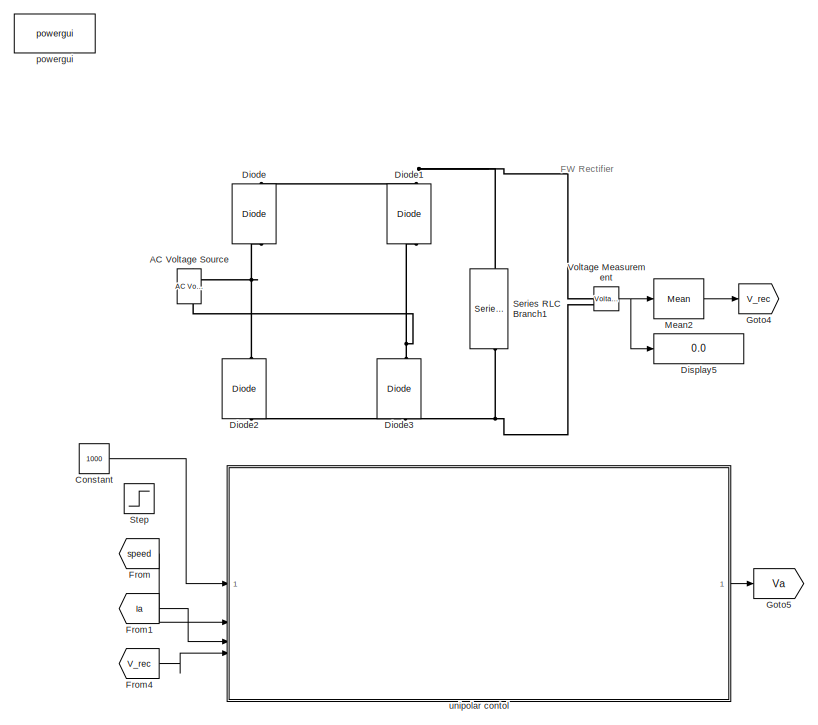
[diagram: root canvas - part 1/4, top left region]
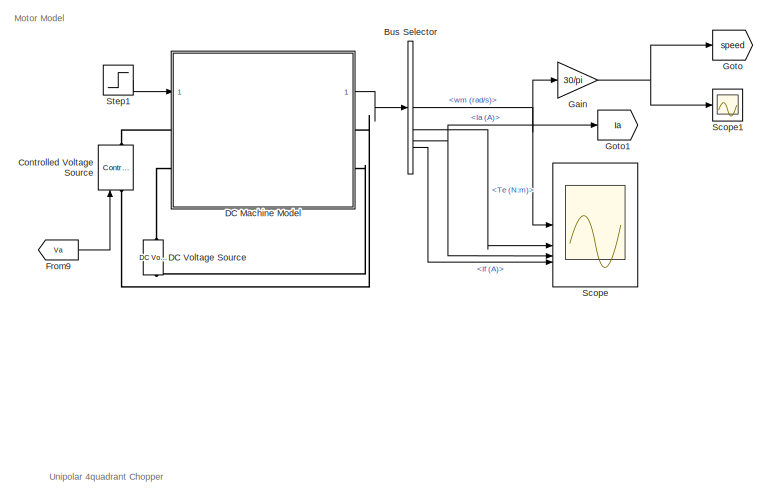
[diagram: root canvas - part 2/4, top right region]
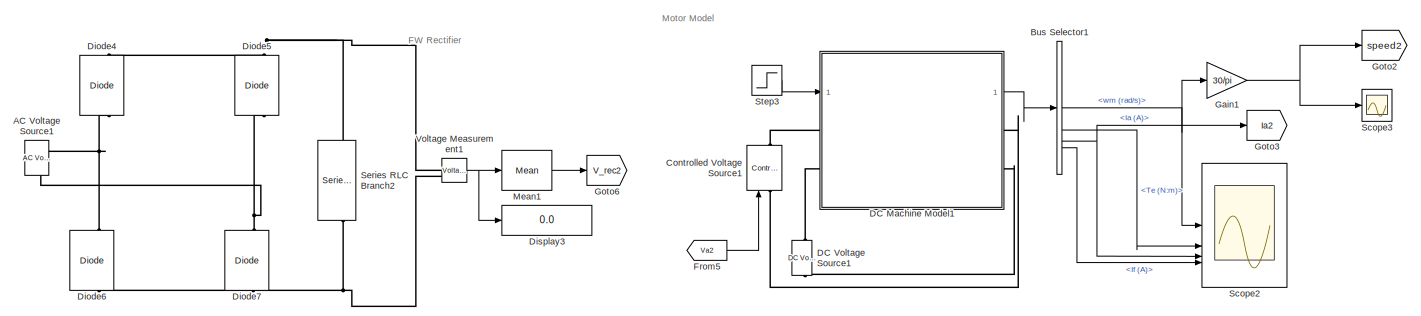
[diagram: root canvas - part 3/4, full width, bottom band]
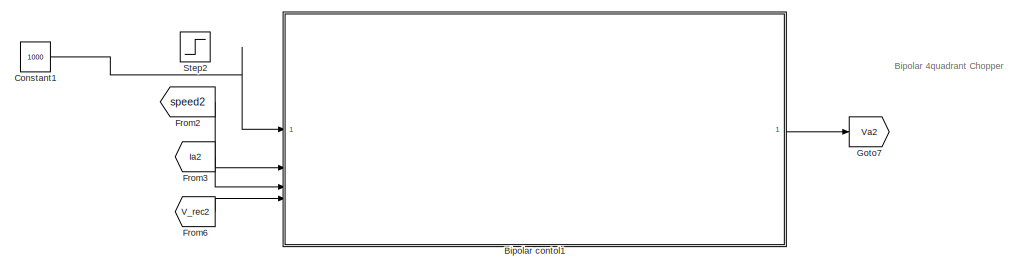
[diagram: root canvas - part 4/4, bottom left region]
MODEL slx_85523266f620
KIND model
CONFIG AbsTol = auto
CONFIG EnableMultiTasking = off
CONFIG FixedStep = auto
CONFIG InitFcn = Ra=0.6;\nLa=12e-3;\nRf=240;\nLf=120;\nj=1;\nK=1.309;
CONFIG MaxStep = 1e-3
CONFIG MinStep = auto
CONFIG RelTol = 1e-3
CONFIG SampleTimeConstraint = Unconstrained
CONFIG SolverName = ode23tb
CONFIG StartTime = 0.0
CONFIG StopTime = 10.0
BLOCK [Reference] AC Voltage Source  REF=spsACVoltageSourceLib/AC Voltage Source
  Commented = on
  LibrarySourceBlock = sps_lib/Sources/AC Voltage Source
  SourceBlock = spsACVoltageSourceLib/AC Voltage Source
  SourceType = AC Voltage Source
BLOCK [Reference] AC Voltage Source1  REF=spsACVoltageSourceLib/AC Voltage Source
  LibrarySourceBlock = sps_lib/Sources/AC Voltage Source
  SourceBlock = spsACVoltageSourceLib/AC Voltage Source
  SourceType = AC Voltage Source
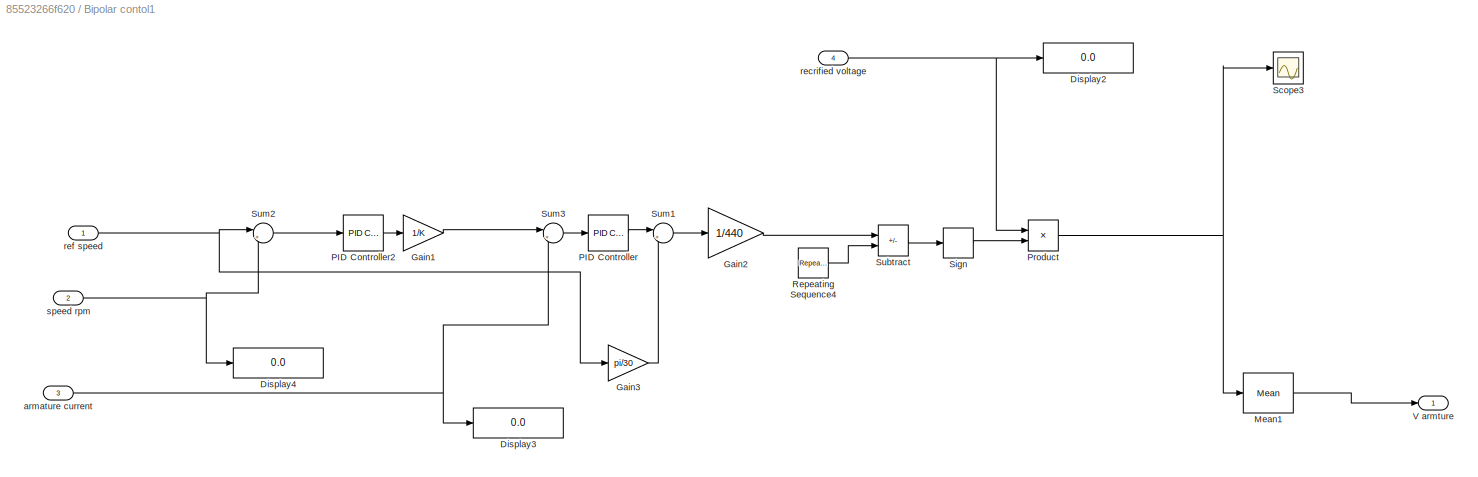
BLOCK [SubSystem] Bipolar contol1
BLOCK [Display] Bipolar contol1/Display2
  Decimation = 1
BLOCK [Display] Bipolar contol1/Display3
  Decimation = 1
BLOCK [Display] Bipolar contol1/Display4
  Decimation = 1
BLOCK [Gain] Bipolar contol1/Gain1
  Gain = 1/K
BLOCK [Gain] Bipolar contol1/Gain2
  Gain = 1/440
BLOCK [Gain] Bipolar contol1/Gain3
  Gain = pi/30
BLOCK [Reference] Bipolar contol1/Mean1  REF=spsMeanLib/Mean
  LibrarySourceBlock = sps_lib/Sensors and Measurements/Mean
  SourceBlock = spsMeanLib/Mean
  SourceType = Mean
BLOCK [Reference] Bipolar contol1/PID Controller  REF=slpidlib/PID Controller
  LibrarySourceBlock = simulink/Continuous/PID Controller
  SourceBlock = slpidlib/PID Controller
  SourceType = PID 1dof
BLOCK [Reference] Bipolar contol1/PID Controller2  REF=slpidlib/PID Controller
  LibrarySourceBlock = simulink/Continuous/PID Controller
  SourceBlock = slpidlib/PID Controller
  SourceType = PID 1dof
BLOCK [Product] Bipolar contol1/Product
BLOCK [Reference] Bipolar contol1/Repeating Sequence4  REF=simulink/Sources/Repeating
Sequence
  SourceBlock = simulink/Sources/Repeating\nSequence
  SourceType = Repeating table
BLOCK [Scope] Bipolar contol1/Scope3
  Floating = off
  NumInputPorts = 1
  ScopeSpecificationString = Simulink.scopes.TimeScopeBlockCfg('CurrentConfiguration', extmgr.ConfigurationSet(extmgr.Configuration('Core','General UI',true),extmgr.Configuration('Core','Source UI',true),extmgr.Configuration('Sources','WiredSimulink',true,'DataLoggingVariableName','ScopeData2'),extmgr.Configuration('Visuals','Time Domain',true,'SerializedDisplays',{struct('MinYLimReal','-299.97108','MaxYLimReal','300.00684','...<+1451ch>
BLOCK [Signum] Bipolar contol1/Sign
BLOCK [Sum] Bipolar contol1/Subtract
  IconShape = rectangular
  Inputs = +-
BLOCK [Sum] Bipolar contol1/Sum1
  Inputs = |++
BLOCK [Sum] Bipolar contol1/Sum2
  Inputs = |+-
BLOCK [Sum] Bipolar contol1/Sum3
  Inputs = |+-
BLOCK [Outport] Bipolar contol1/V armture
BLOCK [Inport] Bipolar contol1/armature current
  Port = 3
BLOCK [Inport] Bipolar contol1/recrified voltage
  Port = 4
BLOCK [Inport] Bipolar contol1/ref speed
BLOCK [Inport] Bipolar contol1/speed rpm
  Port = 2
BLOCK [BusSelector] Bus Selector
  Commented = on
  OutputSignals = wm (rad/s),Te (N:m),Ia (A),If (A)
BLOCK [BusSelector] Bus Selector1
  OutputSignals = wm (rad/s),Te (N:m),Ia (A),If (A)
BLOCK [Constant] Constant
  Commented = on
  Value = 1000
BLOCK [Constant] Constant1
  Value = 1000
BLOCK [Reference] Controlled Voltage Source  REF=spsControlledVoltageSourceLib/Controlled Voltage Source
  Commented = on
  LibrarySourceBlock = sps_lib/Sources/Controlled Voltage Source
  SourceBlock = spsControlledVoltageSourceLib/Controlled Voltage Source
  SourceType = Controlled Voltage Source
BLOCK [Reference] Controlled Voltage Source1  REF=spsControlledVoltageSourceLib/Controlled Voltage Source
  LibrarySourceBlock = sps_lib/Sources/Controlled Voltage Source
  SourceBlock = spsControlledVoltageSourceLib/Controlled Voltage Source
  SourceType = Controlled Voltage Source
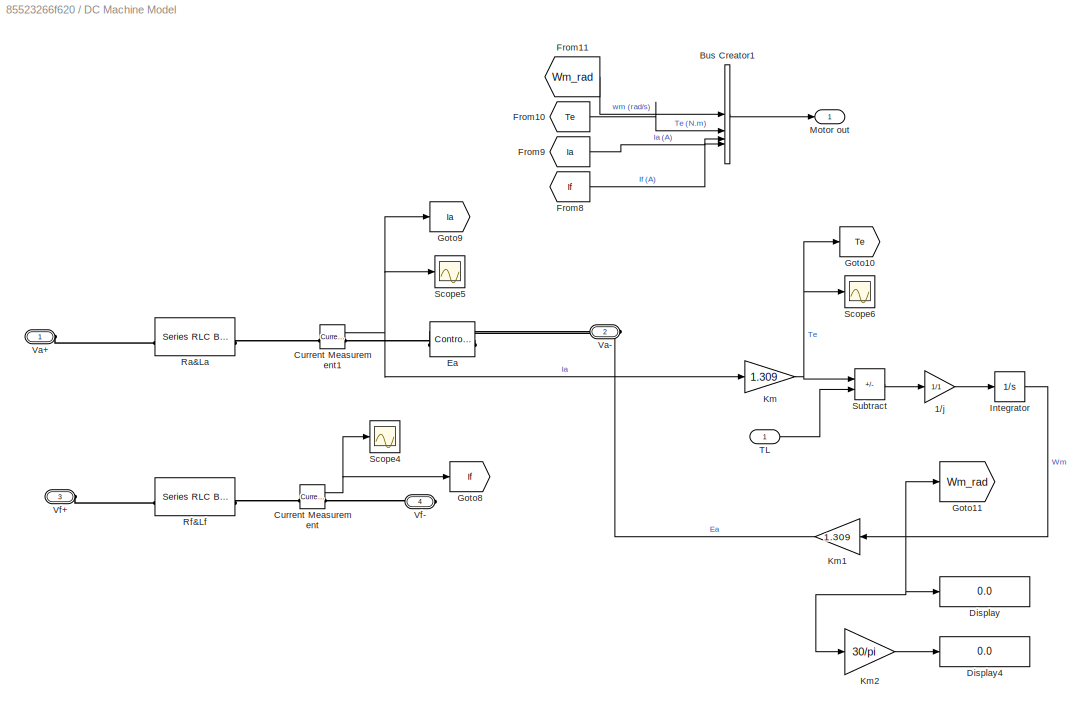
BLOCK [SubSystem] DC Machine Model
  Commented = on
BLOCK [Gain] DC Machine Model/1//j
  Gain = 1/1
BLOCK [BusCreator] DC Machine Model/Bus Creator1
  DisplayOption = bar
  InheritFromInputs = on
  Inputs = 4
BLOCK [Reference] DC Machine Model/Current Measurement  REF=spsCurrentMeasurementLib/Current Measurement
  LibrarySourceBlock = sps_lib/Sensors and Measurements/Current Measurement
  SourceBlock = spsCurrentMeasurementLib/Current Measurement
  SourceType = Current Measurement
  UserDataPersistent = on
BLOCK [Reference] DC Machine Model/Current Measurement1  REF=spsCurrentMeasurementLib/Current Measurement
  LibrarySourceBlock = sps_lib/Sensors and Measurements/Current Measurement
  SourceBlock = spsCurrentMeasurementLib/Current Measurement
  SourceType = Current Measurement
  UserDataPersistent = on
BLOCK [Display] DC Machine Model/Display
  Decimation = 1
BLOCK [Display] DC Machine Model/Display4
  Decimation = 1
BLOCK [Reference] DC Machine Model/Ea  REF=spsControlledVoltageSourceLib/Controlled Voltage Source
  LibrarySourceBlock = sps_lib/Sources/Controlled Voltage Source
  NameLocation = top
  SourceBlock = spsControlledVoltageSourceLib/Controlled Voltage Source
  SourceType = Controlled Voltage Source
BLOCK [From] DC Machine Model/From10
  GotoTag = Te
BLOCK [From] DC Machine Model/From11
  GotoTag = Wm_rad
BLOCK [From] DC Machine Model/From8
  GotoTag = If
BLOCK [From] DC Machine Model/From9
  GotoTag = Ia
BLOCK [Goto] DC Machine Model/Goto10
  GotoTag = Te
BLOCK [Goto] DC Machine Model/Goto11
  GotoTag = Wm_rad
BLOCK [Goto] DC Machine Model/Goto8
  GotoTag = If
BLOCK [Goto] DC Machine Model/Goto9
  GotoTag = Ia
BLOCK [Integrator] DC Machine Model/Integrator
BLOCK [Gain] DC Machine Model/Km
  Gain = 1.309
BLOCK [Gain] DC Machine Model/Km1
  Gain = 1.309
  NameLocation = top
BLOCK [Gain] DC Machine Model/Km2
  Gain = 30/pi
BLOCK [Outport] DC Machine Model/Motor out
BLOCK [Reference] DC Machine Model/Ra&La  REF=spsSeriesRLCBranchLib/Series RLC Branch
  LibrarySourceBlock = sps_lib/Passives/Series RLC Branch
  SourceBlock = spsSeriesRLCBranchLib/Series RLC Branch
  SourceType = Series RLC Branch
BLOCK [Reference] DC Machine Model/Rf&Lf  REF=spsSeriesRLCBranchLib/Series RLC Branch
  LibrarySourceBlock = sps_lib/Passives/Series RLC Branch
  SourceBlock = spsSeriesRLCBranchLib/Series RLC Branch
  SourceType = Series RLC Branch
BLOCK [Scope] DC Machine Model/Scope4
  Floating = off
  NumInputPorts = 1
  ScopeSpecificationString = Simulink.scopes.TimeScopeBlockCfg('CurrentConfiguration', extmgr.ConfigurationSet(extmgr.Configuration('Core','General UI',true),extmgr.Configuration('Core','Source UI',true),extmgr.Configuration('Sources','WiredSimulink',true,'DataLoggingVariableName','ScopeData1'),extmgr.Configuration('Visuals','Time Domain',true,'SerializedDisplays',{struct('MinYLimReal','0.25','MaxYLimReal','2.25','YLabelReal'...<+1352ch>
BLOCK [Scope] DC Machine Model/Scope5
  Floating = off
  NumInputPorts = 1
  ScopeSpecificationString = Simulink.scopes.TimeScopeBlockCfg('CurrentConfiguration', extmgr.ConfigurationSet(extmgr.Configuration('Core','General UI',true),extmgr.Configuration('Core','Source UI',true),extmgr.Configuration('Sources','WiredSimulink',true,'DataLoggingVariableName','ScopeData2'),extmgr.Configuration('Visuals','Time Domain',true,'SerializedDisplays',{struct('MinYLimReal','-50.00000','MaxYLimReal','450.00000','Y...<+1396ch>
BLOCK [Scope] DC Machine Model/Scope6
  Floating = off
  NumInputPorts = 1
  ScopeSpecificationString = Simulink.scopes.TimeScopeBlockCfg('CurrentConfiguration', extmgr.ConfigurationSet(extmgr.Configuration('Core','General UI',true),extmgr.Configuration('Core','Source UI',true),extmgr.Configuration('Sources','WiredSimulink',true,'DataLoggingVariableName','ScopeData3'),extmgr.Configuration('Visuals','Time Domain',true,'SerializedDisplays',{struct('MinYLimReal','519.46921','MaxYLimReal','526.61288','Y...<+1446ch>
BLOCK [Sum] DC Machine Model/Subtract
  IconShape = rectangular
  Inputs = +-
BLOCK [Inport] DC Machine Model/TL
BLOCK [PMIOPort] DC Machine Model/Va+
  Side = Left
BLOCK [PMIOPort] DC Machine Model/Va-
  NameLocation = top
  Port = 2
  Side = Right
BLOCK [PMIOPort] DC Machine Model/Vf+
  Port = 3
  Side = Left
BLOCK [PMIOPort] DC Machine Model/Vf-
  Port = 4
  Side = Right
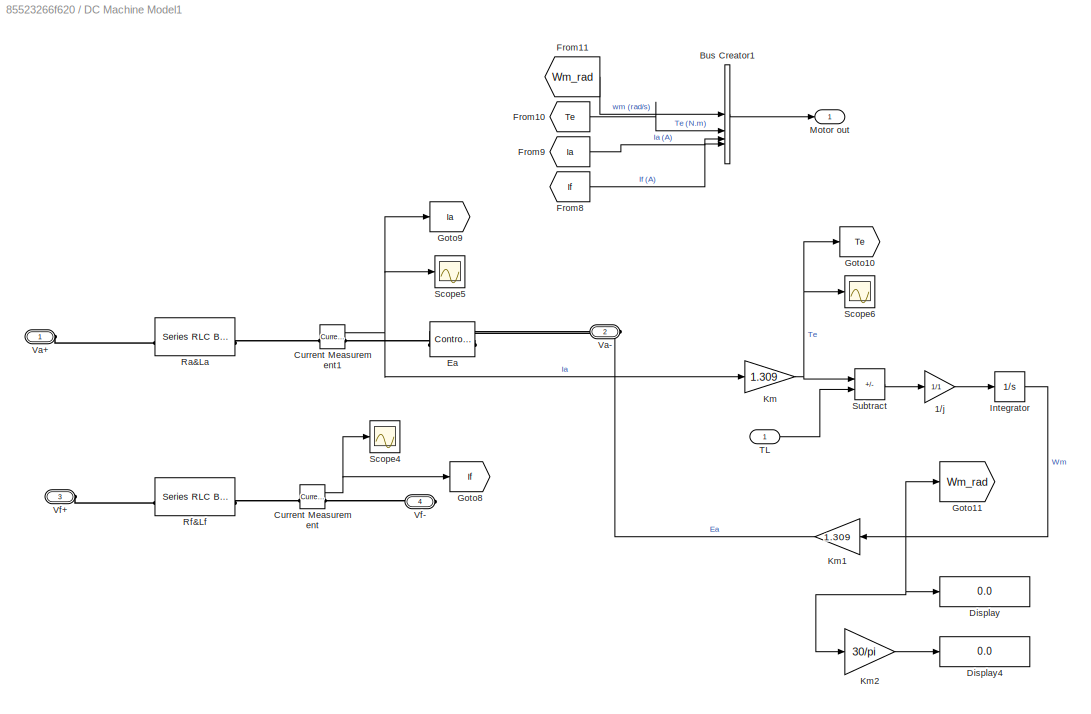
BLOCK [SubSystem] DC Machine Model1
BLOCK [Gain] DC Machine Model1/1//j
  Gain = 1/1
BLOCK [BusCreator] DC Machine Model1/Bus Creator1
  DisplayOption = bar
  InheritFromInputs = on
  Inputs = 4
BLOCK [Reference] DC Machine Model1/Current Measurement  REF=spsCurrentMeasurementLib/Current Measurement
  LibrarySourceBlock = sps_lib/Sensors and Measurements/Current Measurement
  SourceBlock = spsCurrentMeasurementLib/Current Measurement
  SourceType = Current Measurement
  UserDataPersistent = on
BLOCK [Reference] DC Machine Model1/Current Measurement1  REF=spsCurrentMeasurementLib/Current Measurement
  LibrarySourceBlock = sps_lib/Sensors and Measurements/Current Measurement
  SourceBlock = spsCurrentMeasurementLib/Current Measurement
  SourceType = Current Measurement
  UserDataPersistent = on
BLOCK [Display] DC Machine Model1/Display
  Decimation = 1
BLOCK [Display] DC Machine Model1/Display4
  Decimation = 1
BLOCK [Reference] DC Machine Model1/Ea  REF=spsControlledVoltageSourceLib/Controlled Voltage Source
  LibrarySourceBlock = sps_lib/Sources/Controlled Voltage Source
  NameLocation = top
  SourceBlock = spsControlledVoltageSourceLib/Controlled Voltage Source
  SourceType = Controlled Voltage Source
BLOCK [From] DC Machine Model1/From10
  GotoTag = Te
BLOCK [From] DC Machine Model1/From11
  GotoTag = Wm_rad
BLOCK [From] DC Machine Model1/From8
  GotoTag = If
BLOCK [From] DC Machine Model1/From9
  GotoTag = Ia
BLOCK [Goto] DC Machine Model1/Goto10
  GotoTag = Te
BLOCK [Goto] DC Machine Model1/Goto11
  GotoTag = Wm_rad
BLOCK [Goto] DC Machine Model1/Goto8
  GotoTag = If
BLOCK [Goto] DC Machine Model1/Goto9
  GotoTag = Ia
BLOCK [Integrator] DC Machine Model1/Integrator
BLOCK [Gain] DC Machine Model1/Km
  Gain = 1.309
BLOCK [Gain] DC Machine Model1/Km1
  Gain = 1.309
  NameLocation = top
BLOCK [Gain] DC Machine Model1/Km2
  Gain = 30/pi
BLOCK [Outport] DC Machine Model1/Motor out
BLOCK [Reference] DC Machine Model1/Ra&La  REF=spsSeriesRLCBranchLib/Series RLC Branch
  LibrarySourceBlock = sps_lib/Passives/Series RLC Branch
  SourceBlock = spsSeriesRLCBranchLib/Series RLC Branch
  SourceType = Series RLC Branch
BLOCK [Reference] DC Machine Model1/Rf&Lf  REF=spsSeriesRLCBranchLib/Series RLC Branch
  LibrarySourceBlock = sps_lib/Passives/Series RLC Branch
  SourceBlock = spsSeriesRLCBranchLib/Series RLC Branch
  SourceType = Series RLC Branch
BLOCK [Scope] DC Machine Model1/Scope4
  Floating = off
  NumInputPorts = 1
  ScopeSpecificationString = Simulink.scopes.TimeScopeBlockCfg('CurrentConfiguration', extmgr.ConfigurationSet(extmgr.Configuration('Core','General UI',true),extmgr.Configuration('Core','Source UI',true),extmgr.Configuration('Sources','WiredSimulink',true,'DataLoggingVariableName','ScopeData1'),extmgr.Configuration('Visuals','Time Domain',true,'SerializedDisplays',{struct('MinYLimReal','0.25','MaxYLimReal','2.25','YLabelReal'...<+1352ch>
BLOCK [Scope] DC Machine Model1/Scope5
  Floating = off
  NumInputPorts = 1
  ScopeSpecificationString = Simulink.scopes.TimeScopeBlockCfg('CurrentConfiguration', extmgr.ConfigurationSet(extmgr.Configuration('Core','General UI',true),extmgr.Configuration('Core','Source UI',true),extmgr.Configuration('Sources','WiredSimulink',true,'DataLoggingVariableName','ScopeData2'),extmgr.Configuration('Visuals','Time Domain',true,'SerializedDisplays',{struct('MinYLimReal','-50.00000','MaxYLimReal','450.00000','Y...<+1396ch>
BLOCK [Scope] DC Machine Model1/Scope6
  Floating = off
  NumInputPorts = 1
  ScopeSpecificationString = Simulink.scopes.TimeScopeBlockCfg('CurrentConfiguration', extmgr.ConfigurationSet(extmgr.Configuration('Core','General UI',true),extmgr.Configuration('Core','Source UI',true),extmgr.Configuration('Sources','WiredSimulink',true,'DataLoggingVariableName','ScopeData3'),extmgr.Configuration('Visuals','Time Domain',true,'SerializedDisplays',{struct('MinYLimReal','519.46921','MaxYLimReal','526.61288','Y...<+1446ch>
BLOCK [Sum] DC Machine Model1/Subtract
  IconShape = rectangular
  Inputs = +-
BLOCK [Inport] DC Machine Model1/TL
BLOCK [PMIOPort] DC Machine Model1/Va+
  Side = Left
BLOCK [PMIOPort] DC Machine Model1/Va-
  NameLocation = top
  Port = 2
  Side = Right
BLOCK [PMIOPort] DC Machine Model1/Vf+
  Port = 3
  Side = Left
BLOCK [PMIOPort] DC Machine Model1/Vf-
  Port = 4
  Side = Right
BLOCK [Reference] DC Voltage Source  REF=spsDCVoltageSourceLib/DC Voltage Source
  Commented = on
  LibrarySourceBlock = sps_lib/Sources/DC Voltage Source
  SourceBlock = spsDCVoltageSourceLib/DC Voltage Source
  SourceType = DC Voltage Source
BLOCK [Reference] DC Voltage Source1  REF=spsDCVoltageSourceLib/DC Voltage Source
  LibrarySourceBlock = sps_lib/Sources/DC Voltage Source
  SourceBlock = spsDCVoltageSourceLib/DC Voltage Source
  SourceType = DC Voltage Source
BLOCK [Reference] Diode  REF=spsDiodeLib/Diode
  Commented = on
  LibrarySourceBlock = sps_lib/Power Electronics/Diode
  NameLocation = right
  SourceBlock = spsDiodeLib/Diode
  SourceType = Diode
BLOCK [Reference] Diode1  REF=spsDiodeLib/Diode
  Commented = on
  LibrarySourceBlock = sps_lib/Power Electronics/Diode
  NameLocation = right
  SourceBlock = spsDiodeLib/Diode
  SourceType = Diode
BLOCK [Reference] Diode2  REF=spsDiodeLib/Diode
  Commented = on
  LibrarySourceBlock = sps_lib/Power Electronics/Diode
  NameLocation = right
  SourceBlock = spsDiodeLib/Diode
  SourceType = Diode
BLOCK [Reference] Diode3  REF=spsDiodeLib/Diode
  Commented = on
  LibrarySourceBlock = sps_lib/Power Electronics/Diode
  NameLocation = right
  SourceBlock = spsDiodeLib/Diode
  SourceType = Diode
BLOCK [Reference] Diode4  REF=spsDiodeLib/Diode
  LibrarySourceBlock = sps_lib/Power Electronics/Diode
  NameLocation = right
  SourceBlock = spsDiodeLib/Diode
  SourceType = Diode
BLOCK [Reference] Diode5  REF=spsDiodeLib/Diode
  LibrarySourceBlock = sps_lib/Power Electronics/Diode
  NameLocation = right
  SourceBlock = spsDiodeLib/Diode
  SourceType = Diode
BLOCK [Reference] Diode6  REF=spsDiodeLib/Diode
  LibrarySourceBlock = sps_lib/Power Electronics/Diode
  NameLocation = right
  SourceBlock = spsDiodeLib/Diode
  SourceType = Diode
BLOCK [Reference] Diode7  REF=spsDiodeLib/Diode
  LibrarySourceBlock = sps_lib/Power Electronics/Diode
  NameLocation = right
  SourceBlock = spsDiodeLib/Diode
  SourceType = Diode
BLOCK [Display] Display3
  Decimation = 1
BLOCK [Display] Display5
  Commented = on
  Decimation = 1
BLOCK [From] From
  Commented = on
  GotoTag = speed
BLOCK [From] From1
  Commented = on
  GotoTag = Ia
BLOCK [From] From2
  GotoTag = speed2
BLOCK [From] From3
  GotoTag = Ia2
BLOCK [From] From4
  Commented = on
  GotoTag = V_rec
BLOCK [From] From5
  GotoTag = Va2
BLOCK [From] From6
  GotoTag = V_rec2
BLOCK [From] From9
  Commented = on
  GotoTag = Va
BLOCK [Gain] Gain
  Commented = on
  Gain = 30/pi
BLOCK [Gain] Gain1
  Gain = 30/pi
BLOCK [Goto] Goto
  Commented = on
  GotoTag = speed
BLOCK [Goto] Goto1
  Commented = on
  GotoTag = Ia
BLOCK [Goto] Goto2
  GotoTag = speed2
BLOCK [Goto] Goto3
  GotoTag = Ia2
BLOCK [Goto] Goto4
  Commented = on
  GotoTag = V_rec
BLOCK [Goto] Goto5
  Commented = on
  GotoTag = Va
BLOCK [Goto] Goto6
  GotoTag = V_rec2
BLOCK [Goto] Goto7
  GotoTag = Va2
BLOCK [Reference] Mean1  REF=spsMeanLib/Mean
  LibrarySourceBlock = sps_lib/Sensors and Measurements/Mean
  SourceBlock = spsMeanLib/Mean
  SourceType = Mean
BLOCK [Reference] Mean2  REF=spsMeanLib/Mean
  Commented = on
  LibrarySourceBlock = sps_lib/Sensors and Measurements/Mean
  SourceBlock = spsMeanLib/Mean
  SourceType = Mean
BLOCK [Scope] Scope
  Commented = on
  Floating = off
  NumInputPorts = 4
  ScopeSpecificationString = Simulink.scopes.TimeScopeBlockCfg('CurrentConfiguration', extmgr.ConfigurationSet(extmgr.Configuration('Core','General UI',true),extmgr.Configuration('Core','Source UI',true),extmgr.Configuration('Sources','WiredSimulink',true),extmgr.Configuration('Visuals','Time Domain',true,'SerializedDisplays',{struct('MinYLimReal','-29.0029','MaxYLimReal','36.40542','YLabelReal','','MinYLimMag','0.00000','Max...<+3462ch>
BLOCK [Scope] Scope1
  Commented = on
  Floating = off
  NumInputPorts = 1
  ScopeSpecificationString = Simulink.scopes.TimeScopeBlockCfg('CurrentConfiguration', extmgr.ConfigurationSet(extmgr.Configuration('Core','General UI',true),extmgr.Configuration('Core','Source UI',true),extmgr.Configuration('Sources','WiredSimulink',true,'DataLoggingVariableName','ScopeData1'),extmgr.Configuration('Visuals','Time Domain',true,'SerializedDisplays',{struct('MinYLimReal','-883.50372','MaxYLimReal','876.40429','...<+1448ch>
BLOCK [Scope] Scope2
  Floating = off
  NumInputPorts = 4
  ScopeSpecificationString = Simulink.scopes.TimeScopeBlockCfg('CurrentConfiguration', extmgr.ConfigurationSet(extmgr.Configuration('Core','General UI',true),extmgr.Configuration('Core','Source UI',true),extmgr.Configuration('Sources','WiredSimulink',true,'DataLoggingVariableName','ScopeData4'),extmgr.Configuration('Visuals','Time Domain',true,'SerializedDisplays',{struct('MinYLimReal','-47.4294','MaxYLimReal','5.26993','YLab...<+3499ch>
BLOCK [Scope] Scope3
  Floating = off
  NumInputPorts = 1
  ScopeSpecificationString = Simulink.scopes.TimeScopeBlockCfg('CurrentConfiguration', extmgr.ConfigurationSet(extmgr.Configuration('Core','General UI',true),extmgr.Configuration('Core','Source UI',true),extmgr.Configuration('Sources','WiredSimulink',true,'DataLoggingVariableName','ScopeData5'),extmgr.Configuration('Visuals','Time Domain',true,'SerializedDisplays',{struct('MinYLimReal','-883.50372','MaxYLimReal','876.40429','...<+1448ch>
BLOCK [Reference] Series RLC Branch1  REF=spsSeriesRLCBranchLib/Series RLC Branch
  Commented = on
  LibrarySourceBlock = sps_lib/Passives/Series RLC Branch
  NameLocation = left
  SourceBlock = spsSeriesRLCBranchLib/Series RLC Branch
  SourceType = Series RLC Branch
BLOCK [Reference] Series RLC Branch2  REF=spsSeriesRLCBranchLib/Series RLC Branch
  LibrarySourceBlock = sps_lib/Passives/Series RLC Branch
  NameLocation = left
  SourceBlock = spsSeriesRLCBranchLib/Series RLC Branch
  SourceType = Series RLC Branch
BLOCK [Step] Step
  After = -700
  Before = 700
  Commented = on
  SampleTime = 0
  Time = 5
BLOCK [Step] Step1
  After = 100
  Before = 70
  Commented = on
  SampleTime = 0
  Time = 5
BLOCK [Step] Step2
  After = -700
  Before = 700
  SampleTime = 0
  Time = 5
BLOCK [Step] Step3
  After = 60
  Before = 20
  SampleTime = 0
  Time = 5
BLOCK [Reference] Voltage Measurement  REF=spsVoltageMeasurementLib/Voltage Measurement
  Commented = on
  LibrarySourceBlock = sps_lib/Sensors and Measurements/Voltage Measurement
  SourceBlock = spsVoltageMeasurementLib/Voltage Measurement
  SourceType = Voltage Measurement
  UserDataPersistent = on
BLOCK [Reference] Voltage Measurement1  REF=spsVoltageMeasurementLib/Voltage Measurement
  LibrarySourceBlock = sps_lib/Sensors and Measurements/Voltage Measurement
  SourceBlock = spsVoltageMeasurementLib/Voltage Measurement
  SourceType = Voltage Measurement
  UserDataPersistent = on
BLOCK [Reference] powergui  REF=sps_lib/powergui
  Priority = 1
  SourceBlock = sps_lib/powergui
  SourceType = PSB option menu block
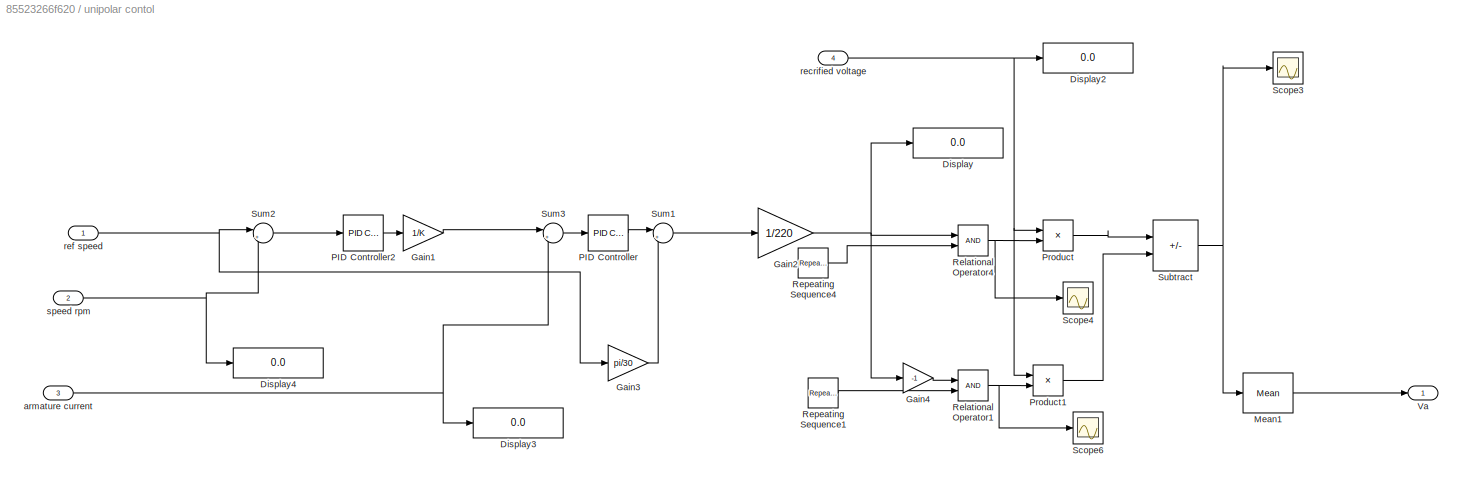
BLOCK [SubSystem] unipolar contol
  Commented = on
BLOCK [Display] unipolar contol/Display
  Decimation = 1
BLOCK [Display] unipolar contol/Display2
  Decimation = 1
BLOCK [Display] unipolar contol/Display3
  Decimation = 1
BLOCK [Display] unipolar contol/Display4
  Decimation = 1
BLOCK [Gain] unipolar contol/Gain1
  Gain = 1/K
BLOCK [Gain] unipolar contol/Gain2
  Gain = 1/220
BLOCK [Gain] unipolar contol/Gain3
  Gain = pi/30
BLOCK [Gain] unipolar contol/Gain4
  Gain = -1
BLOCK [Reference] unipolar contol/Mean1  REF=spsMeanLib/Mean
  LibrarySourceBlock = sps_lib/Sensors and Measurements/Mean
  SourceBlock = spsMeanLib/Mean
  SourceType = Mean
BLOCK [Reference] unipolar contol/PID Controller  REF=slpidlib/PID Controller
  LibrarySourceBlock = simulink/Continuous/PID Controller
  SourceBlock = slpidlib/PID Controller
  SourceType = PID 1dof
BLOCK [Reference] unipolar contol/PID Controller2  REF=slpidlib/PID Controller
  LibrarySourceBlock = simulink/Continuous/PID Controller
  SourceBlock = slpidlib/PID Controller
  SourceType = PID 1dof
BLOCK [Product] unipolar contol/Product
BLOCK [Product] unipolar contol/Product1
BLOCK [RelationalOperator] unipolar contol/Relational Operator1
  InputSameDT = off
  OutDataTypeStr = boolean
  RndMeth = Simplest
BLOCK [RelationalOperator] unipolar contol/Relational Operator4
  InputSameDT = off
  OutDataTypeStr = boolean
  RndMeth = Simplest
BLOCK [Reference] unipolar contol/Repeating Sequence1  REF=simulink/Sources/Repeating
Sequence
  SourceBlock = simulink/Sources/Repeating\nSequence
  SourceType = Repeating table
BLOCK [Reference] unipolar contol/Repeating Sequence4  REF=simulink/Sources/Repeating
Sequence
  SourceBlock = simulink/Sources/Repeating\nSequence
  SourceType = Repeating table
BLOCK [Scope] unipolar contol/Scope3
  Floating = off
  NumInputPorts = 1
  ScopeSpecificationString = Simulink.scopes.TimeScopeBlockCfg('CurrentConfiguration', extmgr.ConfigurationSet(extmgr.Configuration('Core','General UI',true),extmgr.Configuration('Core','Source UI',true),extmgr.Configuration('Sources','WiredSimulink',true,'DataLoggingVariableName','ScopeData2'),extmgr.Configuration('Visuals','Time Domain',true,'SerializedDisplays',{struct('MinYLimReal','-299.97108','MaxYLimReal','300.00684','...<+1452ch>
BLOCK [Scope] unipolar contol/Scope4
  Floating = off
  NumInputPorts = 1
  ScopeSpecificationString = Simulink.scopes.TimeScopeBlockCfg('CurrentConfiguration', extmgr.ConfigurationSet(extmgr.Configuration('Core','General UI',true),extmgr.Configuration('Core','Source UI',true),extmgr.Configuration('Sources','WiredSimulink',true,'DataLoggingVariableName','ScopeData1'),extmgr.Configuration('Visuals','Time Domain',true,'SerializedDisplays',{struct('MinYLimReal','-0.125','MaxYLimReal','1.125','YLabelRe...<+1438ch>
BLOCK [Scope] unipolar contol/Scope6
  Floating = off
  NumInputPorts = 1
  ScopeSpecificationString = Simulink.scopes.TimeScopeBlockCfg('CurrentConfiguration', extmgr.ConfigurationSet(extmgr.Configuration('Core','General UI',true),extmgr.Configuration('Core','Source UI',true),extmgr.Configuration('Sources','WiredSimulink',true,'DataLoggingVariableName','ScopeData2'),extmgr.Configuration('Visuals','Time Domain',true,'SerializedDisplays',{struct('MinYLimReal','-0.125','MaxYLimReal','1.125','YLabelRe...<+1392ch>
BLOCK [Sum] unipolar contol/Subtract
  IconShape = rectangular
  Inputs = +-
BLOCK [Sum] unipolar contol/Sum1
  Inputs = |++
BLOCK [Sum] unipolar contol/Sum2
  Inputs = |+-
BLOCK [Sum] unipolar contol/Sum3
  Inputs = |+-
BLOCK [Outport] unipolar contol/Va
BLOCK [Inport] unipolar contol/armature current
  Port = 3
BLOCK [Inport] unipolar contol/recrified voltage
  Port = 4
BLOCK [Inport] unipolar contol/ref speed
BLOCK [Inport] unipolar contol/speed rpm
  Port = 2
ANNOTATION (root): FW Rectifier
ANNOTATION (root): Motor Model
ANNOTATION (root): Bipolar 4quadrant Chopper
ANNOTATION (root): Unipolar 4quadrant Chopper
LINE Bipolar contol1/Gain1:1 -> Bipolar contol1/Sum3:1
LINE Bipolar contol1/Gain2:1 -> Bipolar contol1/Subtract:1
LINE Bipolar contol1/Gain3:1 -> Bipolar contol1/Sum1:2
LINE Bipolar contol1/Mean1:1 -> Bipolar contol1/V armture:1
LINE Bipolar contol1/PID Controller2:1 -> Bipolar contol1/Gain1:1
LINE Bipolar contol1/PID Controller:1 -> Bipolar contol1/Sum1:1
NET Bipolar contol1/Product:1 -> Bipolar contol1/Mean1:1, Bipolar contol1/Scope3:1
LINE Bipolar contol1/Repeating Sequence4:1 -> Bipolar contol1/Subtract:2
LINE Bipolar contol1/Sign:1 -> Bipolar contol1/Product:2
LINE Bipolar contol1/Subtract:1 -> Bipolar contol1/Sign:1
LINE Bipolar contol1/Sum1:1 -> Bipolar contol1/Gain2:1
LINE Bipolar contol1/Sum2:1 -> Bipolar contol1/PID Controller2:1
LINE Bipolar contol1/Sum3:1 -> Bipolar contol1/PID Controller:1
NET Bipolar contol1/armature current:1 -> Bipolar contol1/Display3:1, Bipolar contol1/Sum3:2
NET Bipolar contol1/recrified voltage:1 -> Bipolar contol1/Display2:1, Bipolar contol1/Product:1
NET Bipolar contol1/ref speed:1 -> Bipolar contol1/Gain3:1, Bipolar contol1/Sum2:1
NET Bipolar contol1/speed rpm:1 -> Bipolar contol1/Display4:1, Bipolar contol1/Sum2:2
LINE Bipolar contol1:1 -> Goto7:1
NET Bus Selector1:1 -> Gain1:1, Scope2:1
LINE Bus Selector1:2 -> Scope2:2
NET Bus Selector1:3 -> Goto3:1, Scope2:3
LINE Bus Selector1:4 -> Scope2:4
NET Bus Selector:1 -> Gain:1, Scope:1
LINE Bus Selector:2 -> Scope:2
NET Bus Selector:3 -> Goto1:1, Scope:3
LINE Bus Selector:4 -> Scope:4
LINE Constant1:1 -> Bipolar contol1:1
LINE Constant:1 -> unipolar contol:1
LINE DC Machine Model/1//j:1 -> DC Machine Model/Integrator:1
LINE DC Machine Model/Bus Creator1:1 -> DC Machine Model/Motor out:1
NET DC Machine Model/Current Measurement1:1 -> DC Machine Model/Goto9:1, DC Machine Model/Km:1, DC Machine Model/Scope5:1
NET DC Machine Model/Current Measurement:1 -> DC Machine Model/Goto8:1, DC Machine Model/Scope4:1
LINE DC Machine Model/From10:1 -> DC Machine Model/Bus Creator1:2
LINE DC Machine Model/From11:1 -> DC Machine Model/Bus Creator1:1
LINE DC Machine Model/From8:1 -> DC Machine Model/Bus Creator1:4
LINE DC Machine Model/From9:1 -> DC Machine Model/Bus Creator1:3
NET DC Machine Model/Integrator:1 -> DC Machine Model/Display:1, DC Machine Model/Goto11:1, DC Machine Model/Km1:1, DC Machine Model/Km2:1
LINE DC Machine Model/Km1:1 -> DC Machine Model/Ea:1
LINE DC Machine Model/Km2:1 -> DC Machine Model/Display4:1
NET DC Machine Model/Km:1 -> DC Machine Model/Goto10:1, DC Machine Model/Scope6:1, DC Machine Model/Subtract:1
LINE DC Machine Model/Subtract:1 -> DC Machine Model/1//j:1
LINE DC Machine Model/TL:1 -> DC Machine Model/Subtract:2
LINE DC Machine Model1/1//j:1 -> DC Machine Model1/Integrator:1
LINE DC Machine Model1/Bus Creator1:1 -> DC Machine Model1/Motor out:1
NET DC Machine Model1/Current Measurement1:1 -> DC Machine Model1/Goto9:1, DC Machine Model1/Km:1, DC Machine Model1/Scope5:1
NET DC Machine Model1/Current Measurement:1 -> DC Machine Model1/Goto8:1, DC Machine Model1/Scope4:1
LINE DC Machine Model1/From10:1 -> DC Machine Model1/Bus Creator1:2
LINE DC Machine Model1/From11:1 -> DC Machine Model1/Bus Creator1:1
LINE DC Machine Model1/From8:1 -> DC Machine Model1/Bus Creator1:4
LINE DC Machine Model1/From9:1 -> DC Machine Model1/Bus Creator1:3
NET DC Machine Model1/Integrator:1 -> DC Machine Model1/Display:1, DC Machine Model1/Goto11:1, DC Machine Model1/Km1:1, DC Machine Model1/Km2:1
LINE DC Machine Model1/Km1:1 -> DC Machine Model1/Ea:1
LINE DC Machine Model1/Km2:1 -> DC Machine Model1/Display4:1
NET DC Machine Model1/Km:1 -> DC Machine Model1/Goto10:1, DC Machine Model1/Scope6:1, DC Machine Model1/Subtract:1
LINE DC Machine Model1/Subtract:1 -> DC Machine Model1/1//j:1
LINE DC Machine Model1/TL:1 -> DC Machine Model1/Subtract:2
LINE DC Machine Model1:1 -> Bus Selector1:1
LINE DC Machine Model:1 -> Bus Selector:1
LINE From1:1 -> unipolar contol:3
LINE From2:1 -> Bipolar contol1:2
LINE From3:1 -> Bipolar contol1:3
LINE From4:1 -> unipolar contol:4
LINE From5:1 -> Controlled Voltage Source1:1
LINE From6:1 -> Bipolar contol1:4
LINE From9:1 -> Controlled Voltage Source:1
LINE From:1 -> unipolar contol:2
NET Gain1:1 -> Goto2:1, Scope3:1
NET Gain:1 -> Goto:1, Scope1:1
LINE Mean1:1 -> Goto6:1
LINE Mean2:1 -> Goto4:1
LINE Step1:1 -> DC Machine Model:1
LINE Step3:1 -> DC Machine Model1:1
NET Voltage Measurement1:1 -> Display3:1, Mean1:1
NET Voltage Measurement:1 -> Display5:1, Mean2:1
LINE unipolar contol/Gain1:1 -> unipolar contol/Sum3:1
NET unipolar contol/Gain2:1 -> unipolar contol/Display:1, unipolar contol/Gain4:1, unipolar contol/Relational Operator4:1
LINE unipolar contol/Gain3:1 -> unipolar contol/Sum1:2
LINE unipolar contol/Gain4:1 -> unipolar contol/Relational Operator1:1
LINE unipolar contol/Mean1:1 -> unipolar contol/Va:1
LINE unipolar contol/PID Controller2:1 -> unipolar contol/Gain1:1
LINE unipolar contol/PID Controller:1 -> unipolar contol/Sum1:1
LINE unipolar contol/Product1:1 -> unipolar contol/Subtract:2
LINE unipolar contol/Product:1 -> unipolar contol/Subtract:1
NET unipolar contol/Relational Operator1:1 -> unipolar contol/Product1:2, unipolar contol/Scope6:1
NET unipolar contol/Relational Operator4:1 -> unipolar contol/Product:2, unipolar contol/Scope4:1
LINE unipolar contol/Repeating Sequence1:1 -> unipolar contol/Relational Operator1:2
LINE unipolar contol/Repeating Sequence4:1 -> unipolar contol/Relational Operator4:2
NET unipolar contol/Subtract:1 -> unipolar contol/Mean1:1, unipolar contol/Scope3:1
LINE unipolar contol/Sum1:1 -> unipolar contol/Gain2:1
LINE unipolar contol/Sum2:1 -> unipolar contol/PID Controller2:1
LINE unipolar contol/Sum3:1 -> unipolar contol/PID Controller:1
NET unipolar contol/armature current:1 -> unipolar contol/Display3:1, unipolar contol/Sum3:2
NET unipolar contol/recrified voltage:1 -> unipolar contol/Display2:1, unipolar contol/Product1:1, unipolar contol/Product:1
NET unipolar contol/ref speed:1 -> unipolar contol/Gain3:1, unipolar contol/Sum2:1
NET unipolar contol/speed rpm:1 -> unipolar contol/Display4:1, unipolar contol/Sum2:2
LINE unipolar contol:1 -> Goto5:1
PNET net1: AC Voltage Source1:LConn1 -- Diode5:LConn1 -- Diode7:RConn1
PNET net2: AC Voltage Source1:RConn1 -- Diode4:LConn1 -- Diode6:RConn1
PNET net3: AC Voltage Source:LConn1 -- Diode1:LConn1 -- Diode3:RConn1
PNET net4: AC Voltage Source:RConn1 -- Diode2:RConn1 -- Diode:LConn1
PLINE Controlled Voltage Source1:LConn1 -- DC Machine Model1:RConn1
PLINE Controlled Voltage Source1:RConn1 -- DC Machine Model1:LConn1
PLINE Controlled Voltage Source:LConn1 -- DC Machine Model:RConn1
PLINE Controlled Voltage Source:RConn1 -- DC Machine Model:LConn1
PLINE DC Machine Model/Current Measurement1:LConn1 -- DC Machine Model/Ra&La:RConn1
PLINE DC Machine Model/Current Measurement1:RConn1 -- DC Machine Model/Ea:RConn1
PLINE DC Machine Model/Current Measurement:LConn1 -- DC Machine Model/Rf&Lf:RConn1
PLINE DC Machine Model/Current Measurement:RConn1 -- DC Machine Model/Vf-:RConn1
PLINE DC Machine Model/Ea:LConn1 -- DC Machine Model/Va-:RConn1
PLINE DC Machine Model/Ra&La:LConn1 -- DC Machine Model/Va+:RConn1
PLINE DC Machine Model/Rf&Lf:LConn1 -- DC Machine Model/Vf+:RConn1
PLINE DC Machine Model1/Current Measurement1:LConn1 -- DC Machine Model1/Ra&La:RConn1
PLINE DC Machine Model1/Current Measurement1:RConn1 -- DC Machine Model1/Ea:RConn1
PLINE DC Machine Model1/Current Measurement:LConn1 -- DC Machine Model1/Rf&Lf:RConn1
PLINE DC Machine Model1/Current Measurement:RConn1 -- DC Machine Model1/Vf-:RConn1
PLINE DC Machine Model1/Ea:LConn1 -- DC Machine Model1/Va-:RConn1
PLINE DC Machine Model1/Ra&La:LConn1 -- DC Machine Model1/Va+:RConn1
PLINE DC Machine Model1/Rf&Lf:LConn1 -- DC Machine Model1/Vf+:RConn1
PLINE DC Machine Model1:LConn2 -- DC Voltage Source1:RConn1
PLINE DC Machine Model1:RConn2 -- DC Voltage Source1:LConn1
PLINE DC Machine Model:LConn2 -- DC Voltage Source:RConn1
PLINE DC Machine Model:RConn2 -- DC Voltage Source:LConn1
PNET net5: Diode1:RConn1 -- Diode:RConn1 -- Series RLC Branch1:LConn1 -- Voltage Measurement:LConn1
PNET net6: Diode2:LConn1 -- Diode3:LConn1 -- Series RLC Branch1:RConn1 -- Voltage Measurement:LConn2
PNET net7: Diode4:RConn1 -- Diode5:RConn1 -- Series RLC Branch2:LConn1 -- Voltage Measurement1:LConn1
PNET net8: Diode6:LConn1 -- Diode7:LConn1 -- Series RLC Branch2:RConn1 -- Voltage Measurement1:LConn2
note: NET lines group one-source signal fan-out (src -> all destinations, sorted); 1:1 wires keep LINE; PNET lines group multi-terminal physical nets as a canonical sorted terminal list (undirected conserving connections); 2-terminal nets keep the pairwise PLINE form
